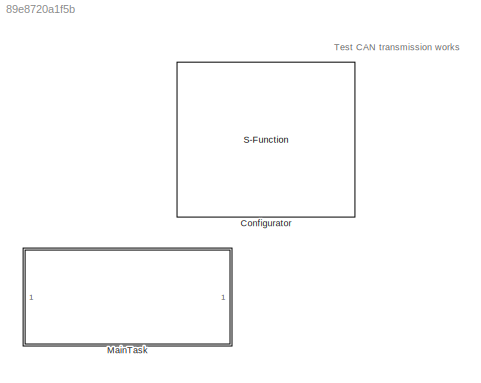
MODEL slx_89e8720a1f5b
KIND model
CONFIG AbsTol = auto
CONFIG EnableMultiTasking = off
CONFIG FixedStep = 0.0001
CONFIG InitFcn = model_check();
CONFIG MaxStep = auto
CONFIG MinStep = auto
CONFIG PostLoadFcn = model_init();
CONFIG RelTol = 1e-3
CONFIG SampleTimeConstraint = Unconstrained
CONFIG Solver = FixedStepDiscrete
CONFIG SolverName = FixedStepDiscrete
CONFIG StartTime = 0.0
CONFIG StopTime = inf
BLOCK [S-Function] Configurator
  EnableBusSupport = off
  FunctionName = NsiSys_Configurator
  OpenFcn = NsiSys_Configurator_OpenFcn();
  Parameters = main,io,nbof_can,can,ccp,flash,nbof_lin,lin,tasks
  Ports = []
  SFcnIsStateOwnerBlock = off
  SFunctionDeploymentMode = off
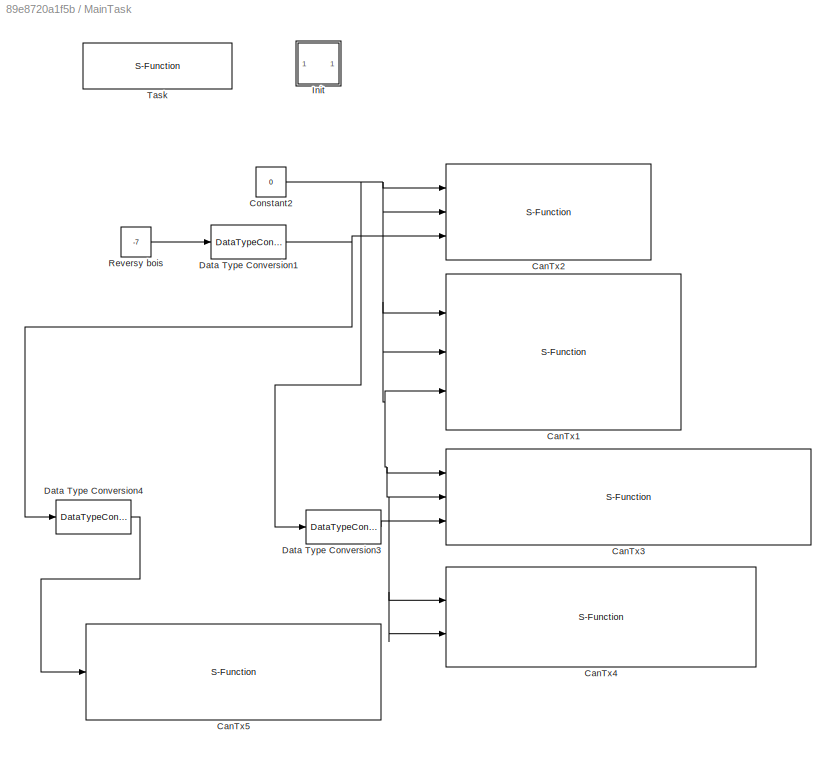
BLOCK [SubSystem] MainTask
  OpenFcn = NsiSys_SubSystemTask_OpenFcn();
  Ports = []
  RTWFcnName = MainTask
  RTWFcnNameOpts = User specified
  RTWFileName = FileTaskFcn
  RTWFileNameOpts = Use function name
  RTWSystemCode = Nonreusable function
  RequestExecContextInheritance = off
  SystemSampleTime = [2]
  TreatAsAtomicUnit = on
  Variant = off
BLOCK [S-Function] MainTask/CanTx1
  EnableBusSupport = off
  FunctionName = NsiCan_Tx_Ext
  OpenFcn = NsiCan_Tx_Ext_OpenFcn();
  Parameters = data_can,channel,msg_name,ident,ident_type,dlc,signals,is_physical,is_canfd,is_crc
  Ports = [3]
  SFcnIsStateOwnerBlock = off
  SFunctionDeploymentMode = off
BLOCK [S-Function] MainTask/CanTx2
  EnableBusSupport = off
  FunctionName = NsiCan_Tx_Ext
  OpenFcn = NsiCan_Tx_Ext_OpenFcn();
  Parameters = data_can,channel,msg_name,ident,ident_type,dlc,signals,is_physical,is_canfd,is_crc
  Ports = [3]
  SFcnIsStateOwnerBlock = off
  SFunctionDeploymentMode = off
BLOCK [S-Function] MainTask/CanTx3
  EnableBusSupport = off
  FunctionName = NsiCan_Tx_Ext
  OpenFcn = NsiCan_Tx_Ext_OpenFcn();
  Parameters = data_can,channel,msg_name,ident,ident_type,dlc,signals,is_physical,is_canfd,is_crc
  Ports = [3]
  SFcnIsStateOwnerBlock = off
  SFunctionDeploymentMode = off
BLOCK [S-Function] MainTask/CanTx4
  EnableBusSupport = off
  FunctionName = NsiCan_Tx_Ext
  OpenFcn = NsiCan_Tx_Ext_OpenFcn();
  Parameters = data_can,channel,msg_name,ident,ident_type,dlc,signals,is_physical,is_canfd,is_crc
  Ports = [2]
  SFcnIsStateOwnerBlock = off
  SFunctionDeploymentMode = off
BLOCK [S-Function] MainTask/CanTx5
  EnableBusSupport = off
  FunctionName = NsiCan_Tx_Ext
  OpenFcn = NsiCan_Tx_Ext_OpenFcn();
  Parameters = data_can,channel,msg_name,ident,ident_type,dlc,signals,is_physical,is_canfd,is_crc
  Ports = [1]
  SFcnIsStateOwnerBlock = off
  SFunctionDeploymentMode = off
BLOCK [Constant] MainTask/Constant2
  OutDataTypeStr = uint16
  SampleTime = -1
  Value = 0
BLOCK [DataTypeConversion] MainTask/Data Type Conversion1
  OutDataTypeStr = uint16
  RndMeth = Floor
  SaturateOnIntegerOverflow = off
BLOCK [DataTypeConversion] MainTask/Data Type Conversion3
  OutDataTypeStr = uint8
  RndMeth = Floor
  SaturateOnIntegerOverflow = off
BLOCK [DataTypeConversion] MainTask/Data Type Conversion4
  RndMeth = Floor
  SaturateOnIntegerOverflow = off
BLOCK [SubSystem] MainTask/Init
  CopyFcn = cccopyfcn(gcb)
  OpenFcn = ccopenfcn('System Initialize Function')
  Ports = []
  RequestExecContextInheritance = off
  Variant = off
BLOCK [Constant] MainTask/Reversy bois
  OutDataTypeStr = int16
  SampleTime = -1
  Value = -7
BLOCK [S-Function] MainTask/Task
  EnableBusSupport = off
  FunctionName = NsiSys_TaskREF
  OpenFcn = NsiSys_Task_OpenFcn();
  Parameters = task_initialised,task_periodic, task_sampletime,task_name,task_event,task_offset
  Ports = []
  SFcnIsStateOwnerBlock = off
  SFunctionDeploymentMode = off
ANNOTATION (root): Test CAN transmission works
NET MainTask/Constant2:1 -> MainTask/CanTx1:1, MainTask/CanTx1:2, MainTask/CanTx1:3, MainTask/CanTx2:1, MainTask/CanTx2:2, MainTask/CanTx3:1, MainTask/CanTx3:2, MainTask/CanTx4:1, MainTask/CanTx4:2, MainTask/Data Type Conversion3:1
NET MainTask/Data Type Conversion1:1 -> MainTask/CanTx2:3, MainTask/Data Type Conversion4:1
LINE MainTask/Data Type Conversion3:1 -> MainTask/CanTx3:3
LINE MainTask/Data Type Conversion4:1 -> MainTask/CanTx5:1
LINE MainTask/Reversy bois:1 -> MainTask/Data Type Conversion1:1
note: NET lines group one-source signal fan-out (src -> all destinations, sorted); 1:1 wires keep LINE
